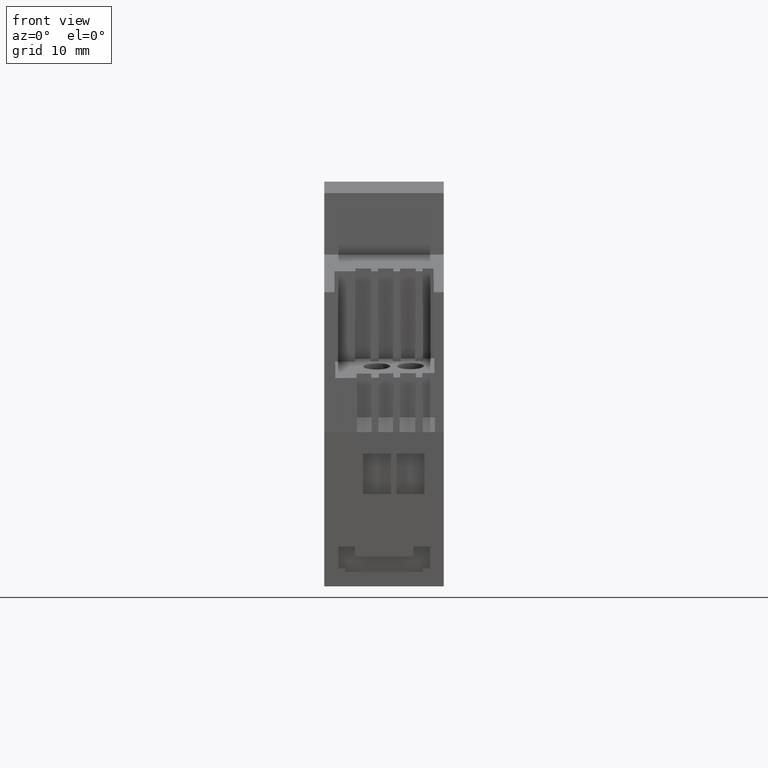
[diagram: clean part render]
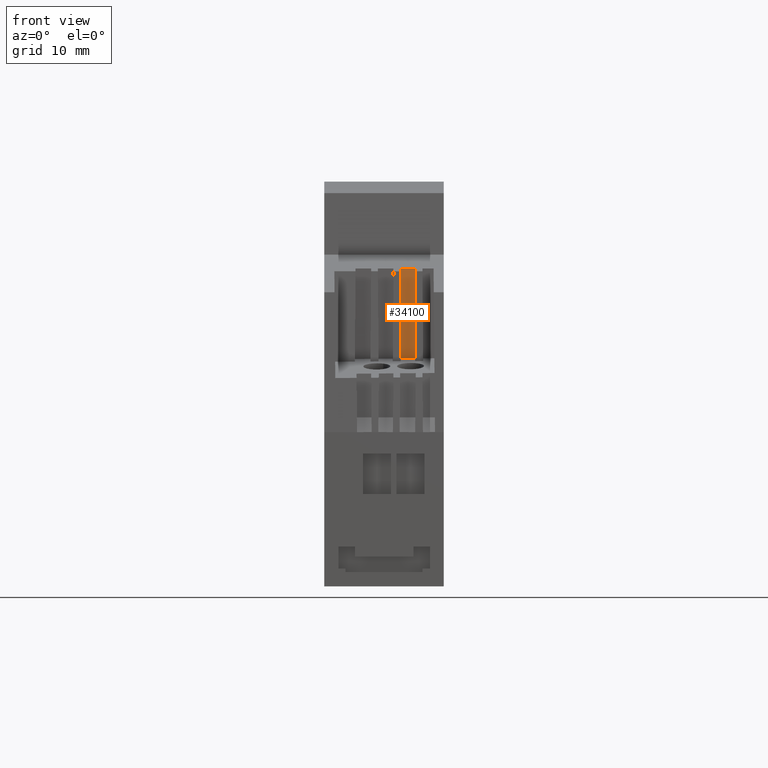
[diagram: same view with one face highlighted and labeled with its STEP entity id]
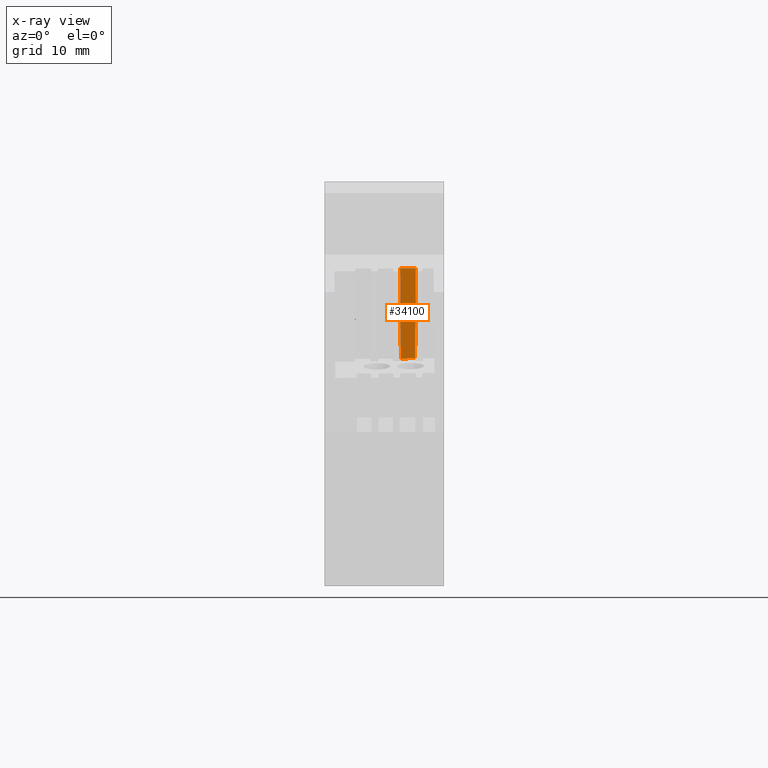
[diagram: x-ray of the same camera — body ghosted, the highlighted face saturated]
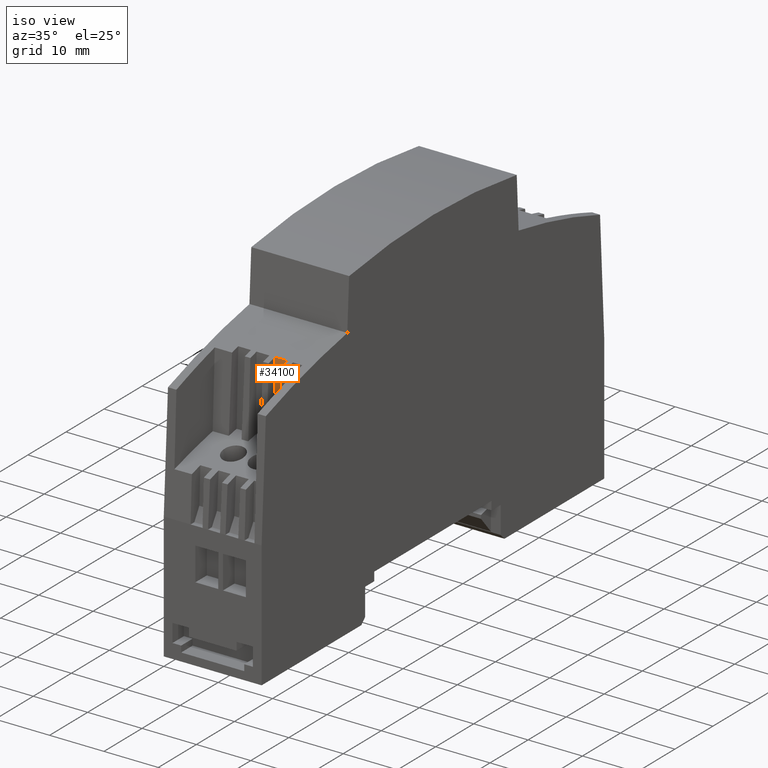
[diagram: same view with one face highlighted and labeled with its STEP entity id]
A machine part, front view. The second image highlights one B-rep face of the part: STEP entity #34100.
The next image is the same camera in x-ray: the body ghosted, the highlighted face saturated — about 0% of this face is hidden behind the body in this view.
A second angle (iso view) of the same face is appended — the face is thin or edge-on in the first view.
In plain terms, the highlighted planar face has unit normal (0.0002, 0.9998, -0.0223).
Its self-contained STEP definition (entity closure, byte-faithful):
#4660=CARTESIAN_POINT('',(32.45515064375,34.3616810993584,
-4.68536843395103));
#4670=VERTEX_POINT('',#4660);
#4720=CARTESIAN_POINT('',(32.3031058534244,41.1849967938318,
-4.73300493777731));
#4730=DIRECTION('',(0.0222770513249,-0.999727472452358,
0.00697952779838263));
#4740=VECTOR('',#4730,1.);
#4750=LINE('',#4720,#4740);
#4760=CARTESIAN_POINT('',(32.1533225508675,47.906823677328,
-4.77993290453029));
#4770=VERTEX_POINT('',#4760);
#4780=EDGE_CURVE('',#4770,#4670,#4750,.T.);
#6060=CARTESIAN_POINT('',(11.1944867334395,-82.8205342161676,
6.34089229144267));
#6070=DIRECTION('',(-1.76127537504895E-14,0.00872653549841275,
-0.999961923064171));
#6080=DIRECTION('',(0.200308362867416,0.979695597030382,
0.00854967395050714));
#6090=AXIS2_PLACEMENT_3D('',#6060,#6070,#6080);
#6100=CYLINDRICAL_SURFACE('',#6090,118.996222798679);
#6380=CARTESIAN_POINT('',(0.0678739772899988,-78.049936182583,-9.));
#6390=DIRECTION('',(0.,0.,-1.));
#6400=DIRECTION('',(-0.173645167147608,0.984808283843246,0.));
#6410=AXIS2_PLACEMENT_3D('',#6380,#6390,#6400);
#6420=CYLINDRICAL_SURFACE('',#6410,129.9791574237);
#6940=CARTESIAN_POINT('',(32.2,45.7958963043397,-2.44730438806806));
#6950=DIRECTION('',(-0.999751787330191,-0.022278679007417,
-0.000155537047573654));
#6960=DIRECTION('',(0.02227922193634,-0.999727424084354,
-0.00697952746070478));
#6970=AXIS2_PLACEMENT_3D('',#6940,#6950,#6960);
#6980=PLANE('',#6970);
#6990=CARTESIAN_POINT('',(32.1533225508674,47.9068236773281,
-4.77993290412726));
#7000=CARTESIAN_POINT('',(32.1532919443705,47.9068314738385,
-4.58431903224228));
#7010=CARTESIAN_POINT('',(32.1532613378738,47.9068392703369,
-4.38870516035612));
#7020=CARTESIAN_POINT('',(32.1532307313773,47.9068470668234,
-4.19309128847058));
#7030=CARTESIAN_POINT('',(32.1532001248809,47.9068548633098,
-3.99747741658432));
#7040=CARTESIAN_POINT('',(32.1531695183847,47.9068626597844,
-3.80186354469953));
#7050=CARTESIAN_POINT('',(32.1531389118888,47.9068704562469,
-3.60624967281378));
#7060=CARTESIAN_POINT('',(32.1531083053929,47.9068782527095,
-3.41063580092769));
#7070=CARTESIAN_POINT('',(32.1530776988973,47.9068860491602,
-3.21502192904273));
#7080=CARTESIAN_POINT('',(32.1530470924019,47.9068938455988,
-3.0194080571571));
#7090=CARTESIAN_POINT('',(32.1530164859065,47.9069016420375,
-2.82379418527145));
#7100=CARTESIAN_POINT('',(32.1529858794114,47.9069094384643,
-2.62818031338537));
#7110=CARTESIAN_POINT('',(32.1529552729166,47.906917234879,
-2.43256644150008));
#7120=B_SPLINE_CURVE_WITH_KNOTS('',3,(#6990,#7000,#7010,#7020,#7030,
#7040,#7050,#7060,#7070,#7080,#7090,#7100,#7110),.UNSPECIFIED.,.F.,.F.,(
4,3,3,3,4),(0.,0.586841623306008,1.17368324661213,1.76052486991813,
2.34736649322447),.UNSPECIFIED.);
#7130=SURFACE_CURVE('',#7120,(#6420,#6980),.CURVE_3D.);
#7140=CARTESIAN_POINT('',(32.1529552729167,47.906917234879,
-2.43256644230418));
#7150=VERTEX_POINT('',#7140);
#7160=EDGE_CURVE('',#4770,#7150,#7130,.T.);
#22570=CARTESIAN_POINT('',(32.4552349258163,34.3428322946626,
-2.52726315766765));
#22580=VERTEX_POINT('',#22570);
#22610=CARTESIAN_POINT('',(32.4552349258163,34.3428322946626,
-2.52726315766835));
#22620=CARTESIAN_POINT('',(32.4552279023107,34.3444030283899,
-2.70710526402536));
#22630=CARTESIAN_POINT('',(32.4552208788052,34.3459737621165,
-2.88694737038062));
#22640=CARTESIAN_POINT('',(32.4552138552996,34.3475444958425,
-3.06678947673877));
#22650=CARTESIAN_POINT('',(32.455206831794,34.3491152295684,
-3.24663158309492));
#22660=CARTESIAN_POINT('',(32.4551998082885,34.3506859632937,
-3.42647368945217));
#22670=CARTESIAN_POINT('',(32.455192784783,34.3522566970184,
-3.6063157958096));
#22680=CARTESIAN_POINT('',(32.4551857612774,34.353827430743,
-3.78615790216514));
#22690=CARTESIAN_POINT('',(32.4551787377719,34.355398164467,
-3.96600000852263));
#22700=CARTESIAN_POINT('',(32.4551717142664,34.3569688981904,
-4.14584211488001));
#22710=CARTESIAN_POINT('',(32.4551646907609,34.3585396319137,
-4.32568422123635));
#22720=CARTESIAN_POINT('',(32.4551576672554,34.3601103656364,
-4.50552632759385));
#22730=CARTESIAN_POINT('',(32.45515064375,34.3616810993584,
-4.68536843395048));
#22740=B_SPLINE_CURVE_WITH_KNOTS('',3,(#22610,#22620,#22630,#22640,
#22650,#22660,#22670,#22680,#22690,#22700,#22710,#22720,#22730),
.UNSPECIFIED.,.F.,.F.,(4,3,3,3,4),(0.,0.53954689717726,1.07909379435489,
1.61864069153207,2.15818758870926),.UNSPECIFIED.);
#22750=SURFACE_CURVE('',#22740,(#6980,#6100),.CURVE_3D.);
#22760=EDGE_CURVE('',#22580,#4670,#22750,.T.);
#33620=CARTESIAN_POINT('',(32.3027552621304,41.1849967938318,
-2.47949506222269));
#33630=DIRECTION('',(-0.02227922193634,0.999727424084353,
0.00697952746070477));
#33640=VECTOR('',#33630,1.);
#33650=LINE('',#33620,#33640);
#33660=EDGE_CURVE('',#22580,#7150,#33650,.T.);
#34040=ORIENTED_EDGE('',*,*,#33660,.F.);
#34050=ORIENTED_EDGE('',*,*,#7160,.T.);
#34060=ORIENTED_EDGE('',*,*,#4780,.F.);
#34070=ORIENTED_EDGE('',*,*,#22760,.T.);
#34080=EDGE_LOOP('',(#34070,#34060,#34050,#34040));
#34090=FACE_OUTER_BOUND('',#34080,.T.);
#34100=ADVANCED_FACE('',(#34090),#6980,.F.);